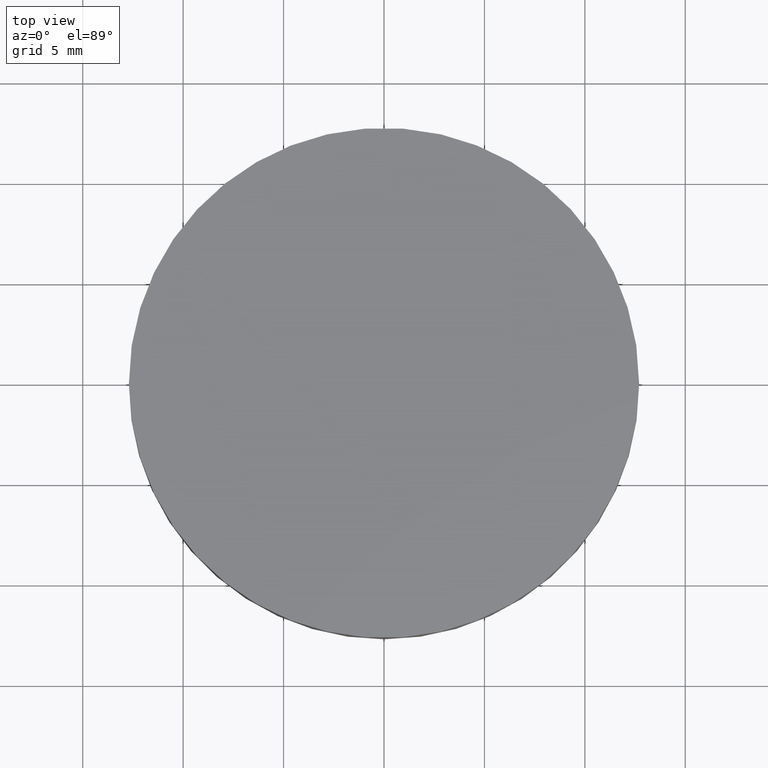
[diagram: clean part render]
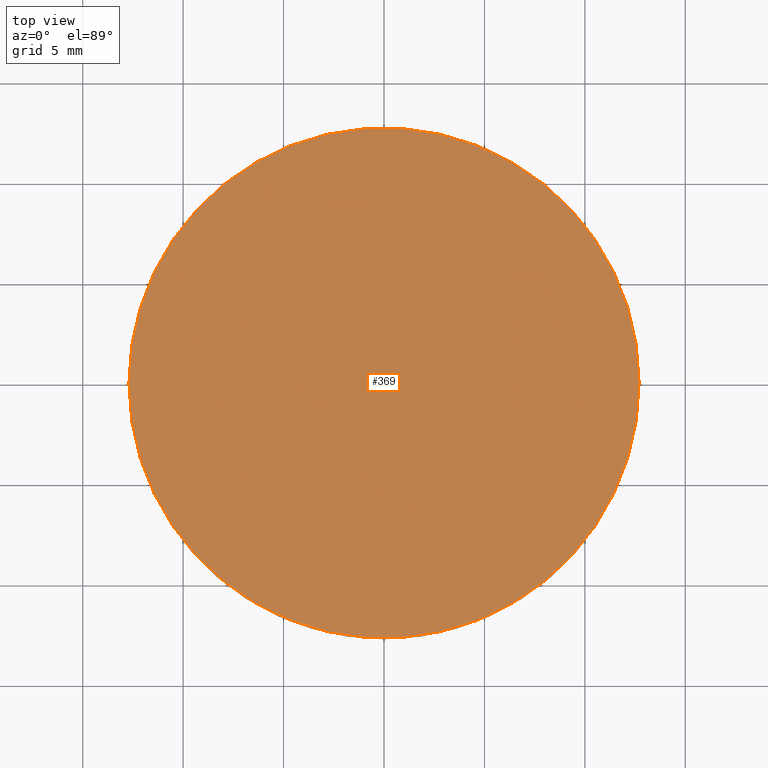
[diagram: same view with one face highlighted and labeled with its STEP entity id]
A machine part, top view. The second image highlights one B-rep face of the part: STEP entity #369.
In plain terms, the highlighted planar face has unit normal (0, 0, 1).
Its self-contained STEP definition (entity closure, byte-faithful):
#22 = CIRCLE ( 'NONE', #536, 12.69999999999999929 ) ;
#24 = FACE_OUTER_BOUND ( 'NONE', #255, .T. ) ;
#88 = CARTESIAN_POINT ( 'NONE',  ( 1.150626804807467557E-15, -8.881784197001250351E-16, 5.999999999999999112 ) ) ;
#95 = AXIS2_PLACEMENT_3D ( 'NONE', #88, #401, #142 ) ;
#104 = CARTESIAN_POINT ( 'NONE',  ( 0.000000000000000000, 26.11199999999999832, 6.000000000000000000 ) ) ;
#142 = DIRECTION ( 'NONE',  ( 1.000000000000000000, 0.000000000000000000, -6.829619984160658046E-17 ) ) ;
#169 = EDGE_CURVE ( 'NONE', #483, #265, #22, .T. ) ;
#203 = CARTESIAN_POINT ( 'NONE',  ( 12.70000000000000107, -8.881784197001250351E-16, 5.999999999999998224 ) ) ;
#255 = EDGE_LOOP ( 'NONE', ( #272, #293 ) ) ;
#265 = VERTEX_POINT ( 'NONE', #203 ) ;
#269 = CARTESIAN_POINT ( 'NONE',  ( -12.69999999999999751, 6.671230152170134961E-16, 6.000000000000000000 ) ) ;
#272 = ORIENTED_EDGE ( 'NONE', *, *, #508, .F. ) ;
#292 = AXIS2_PLACEMENT_3D ( 'NONE', #104, #529, #522 ) ;
#293 = ORIENTED_EDGE ( 'NONE', *, *, #169, .F. ) ;
#329 = DIRECTION ( 'NONE',  ( -6.993530863780509846E-17, -4.890947394265059749E-33, -1.000000000000000000 ) ) ;
#369 = ADVANCED_FACE ( 'NONE', ( #24 ), #448, .T. ) ;
#401 = DIRECTION ( 'NONE',  ( -6.993530863780509846E-17, -4.890947394265059749E-33, -1.000000000000000000 ) ) ;
#441 = CIRCLE ( 'NONE', #95, 12.69999999999999929 ) ;
#444 = CARTESIAN_POINT ( 'NONE',  ( 1.150626804807467557E-15, -8.881784197001250351E-16, 5.999999999999999112 ) ) ;
#447 = DIRECTION ( 'NONE',  ( 1.000000000000000000, 0.000000000000000000, -6.829619984160658046E-17 ) ) ;
#448 = PLANE ( 'NONE',  #292 ) ;
#483 = VERTEX_POINT ( 'NONE', #269 ) ;
#508 = EDGE_CURVE ( 'NONE', #265, #483, #441, .T. ) ;
#522 = DIRECTION ( 'NONE',  ( 1.000000000000000000, 0.000000000000000000, -0.000000000000000000 ) ) ;
#529 = DIRECTION ( 'NONE',  ( 0.000000000000000000, 0.000000000000000000, 1.000000000000000000 ) ) ;
#536 = AXIS2_PLACEMENT_3D ( 'NONE', #444, #329, #447 ) ;